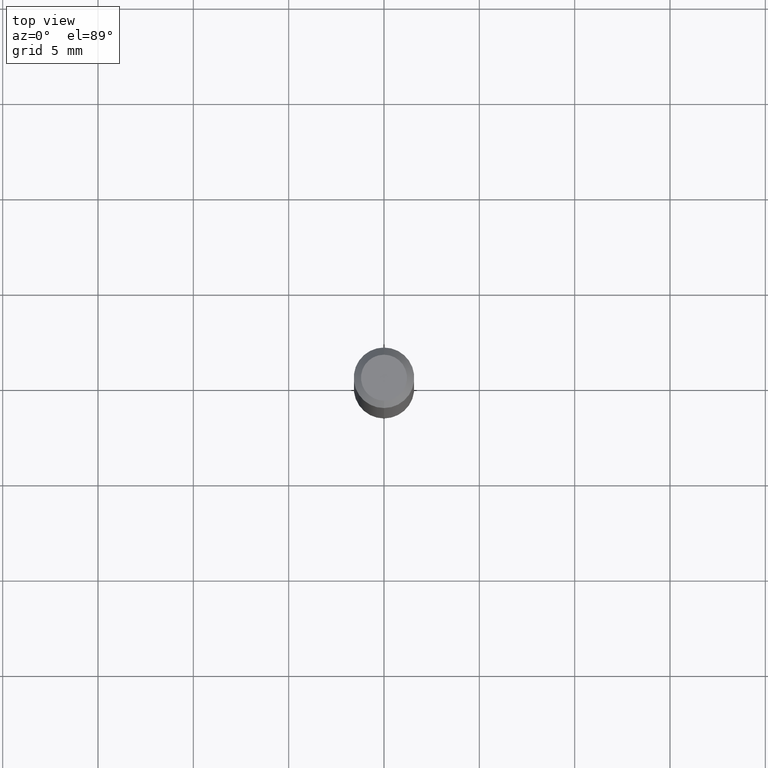
[diagram: clean part render]
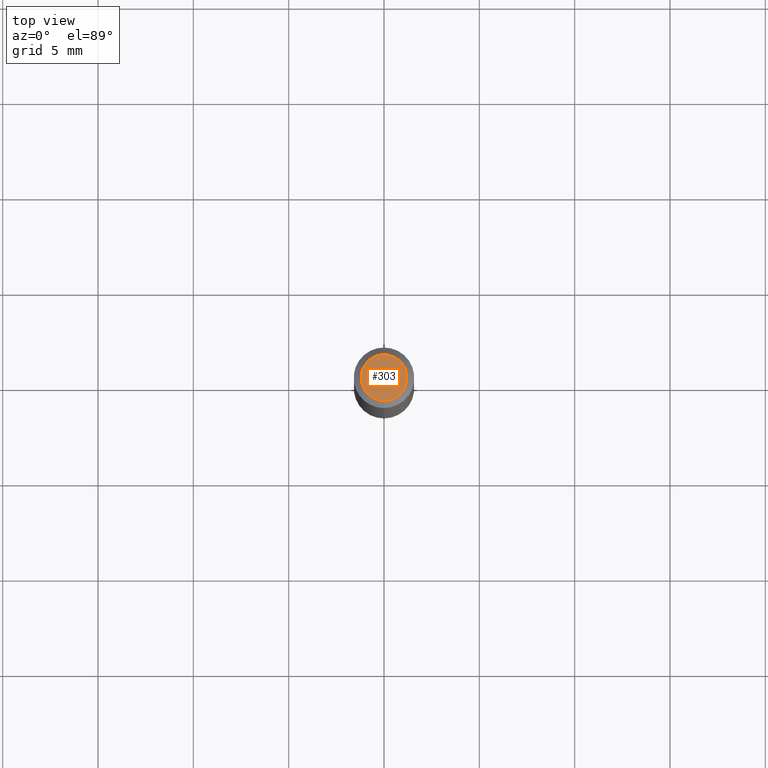
[diagram: same view with one face highlighted and labeled with its STEP entity id]
A machine part, top view. The second image highlights one B-rep face of the part: STEP entity #303.
In plain terms, the highlighted planar face has unit normal (0, -0, -1).
Its self-contained STEP definition (entity closure, byte-faithful):
#1 = ORIENTED_EDGE ( 'NONE', *, *, #85, .T. ) ;
#19 = DIRECTION ( 'NONE',  ( -2.447019908493791641E-29, 3.489260072053890687E-15, 1.000000000000000000 ) ) ;
#23 = AXIS2_PLACEMENT_3D ( 'NONE', #95, #19, #256 ) ;
#67 = ORIENTED_EDGE ( 'NONE', *, *, #99, .T. ) ;
#85 = EDGE_CURVE ( 'NONE', #310, #89, #444, .T. ) ;
#89 = VERTEX_POINT ( 'NONE', #183 ) ;
#95 = CARTESIAN_POINT ( 'NONE',  ( 2.193956392945895993E-46, -3.128411180947656791E-32, -8.965829764320701428E-18 ) ) ;
#96 = CARTESIAN_POINT ( 'NONE',  ( 2.193956392945895993E-46, -3.128411180947656791E-32, -8.965829764320701428E-18 ) ) ;
#99 = EDGE_CURVE ( 'NONE', #89, #310, #410, .T. ) ;
#115 = AXIS2_PLACEMENT_3D ( 'NONE', #381, #301, #143 ) ;
#143 = DIRECTION ( 'NONE',  ( 6.982962677686265922E-15, 1.000000000000000000, -3.489260072053890687E-15 ) ) ;
#150 = FACE_OUTER_BOUND ( 'NONE', #242, .T. ) ;
#183 = CARTESIAN_POINT ( 'NONE',  ( -3.773273898774340269E-16, -0.04749999999999999362, 1.567740236582390800E-16 ) ) ;
#242 = EDGE_LOOP ( 'NONE', ( #1, #67 ) ) ;
#256 = DIRECTION ( 'NONE',  ( -6.982962677686266711E-15, -1.000000000000000000, 3.489260072053891082E-15 ) ) ;
#300 = DIRECTION ( 'NONE',  ( -2.447019908493791641E-29, 3.489260072053890687E-15, 1.000000000000000000 ) ) ;
#301 = DIRECTION ( 'NONE',  ( 2.447019908493791361E-29, -3.489260072053890687E-15, -1.000000000000000000 ) ) ;
#303 = ADVANCED_FACE ( 'NONE', ( #150 ), #506, .F. ) ;
#309 = CARTESIAN_POINT ( 'NONE',  ( 3.840629472727447874E-16, 0.04749999999999999362, -1.747056831868805136E-16 ) ) ;
#310 = VERTEX_POINT ( 'NONE', #309 ) ;
#381 = CARTESIAN_POINT ( 'NONE',  ( 3.316907271900976096E-16, 0.04749999999999999362, -1.702227683047201675E-16 ) ) ;
#410 = CIRCLE ( 'NONE', #509, 0.04749999999999999362 ) ;
#444 = CIRCLE ( 'NONE', #23, 0.04749999999999999362 ) ;
#492 = DIRECTION ( 'NONE',  ( -6.982962677686266711E-15, -1.000000000000000000, 3.489260072053891082E-15 ) ) ;
#506 = PLANE ( 'NONE',  #115 ) ;
#509 = AXIS2_PLACEMENT_3D ( 'NONE', #96, #300, #492 ) ;